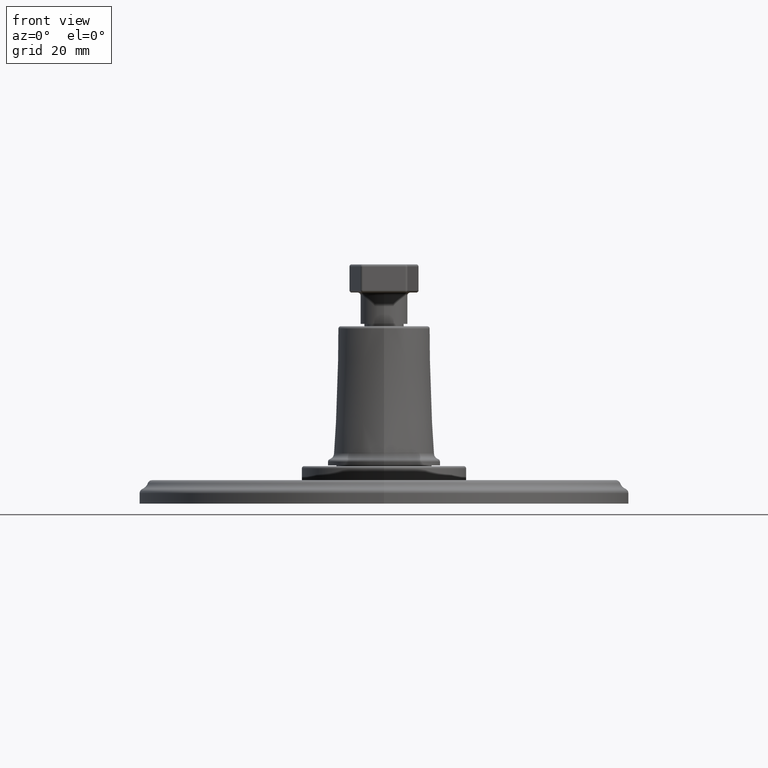
[diagram: clean part render]
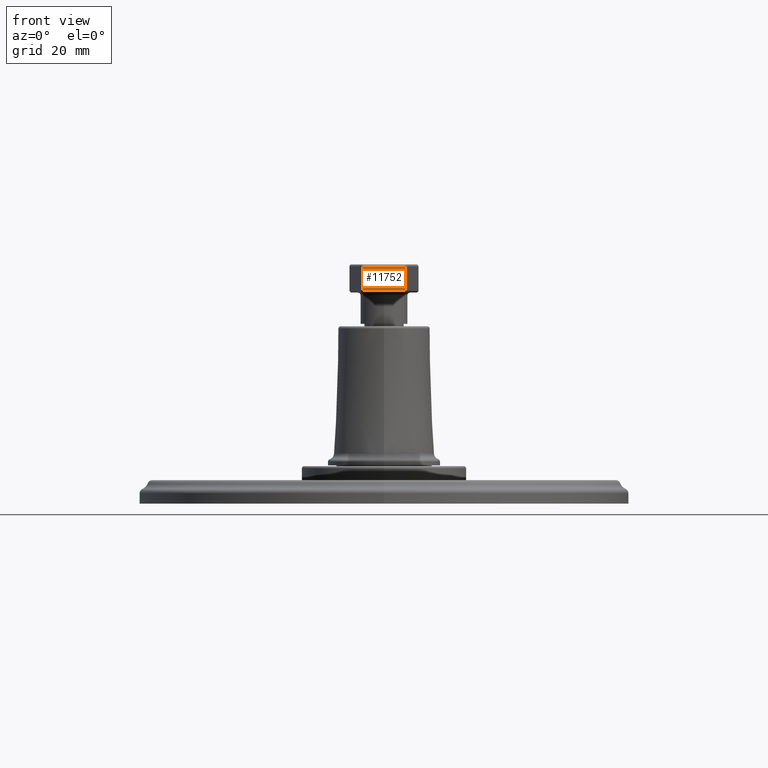
[diagram: same view with one face highlighted and labeled with its STEP entity id]
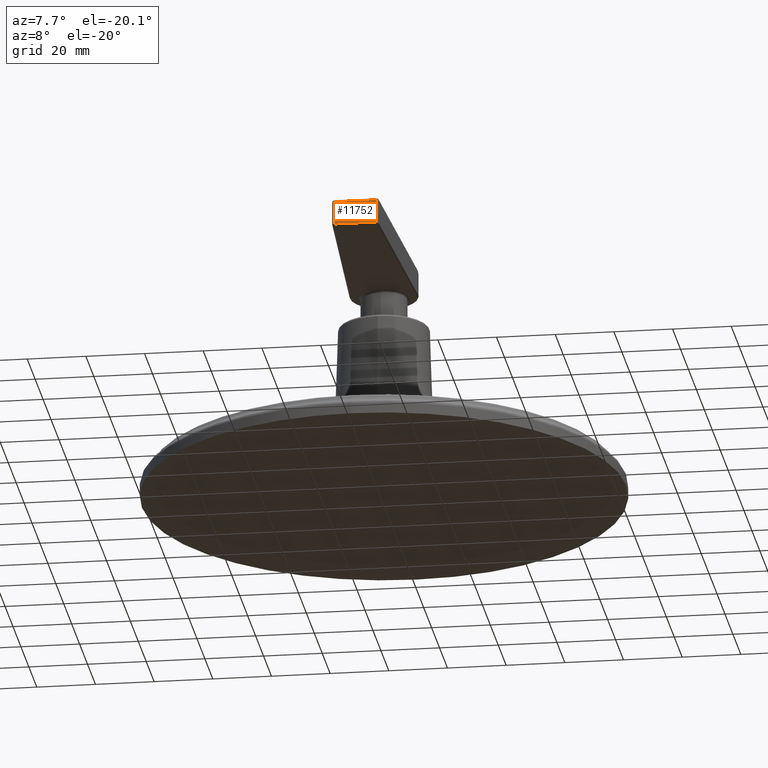
[diagram: same view with one face highlighted and labeled with its STEP entity id]
A machine part, front view. The second image highlights one B-rep face of the part: STEP entity #11752.
A second angle (auxiliary view) of the same face is appended — the face is thin or edge-on in the first view.
In plain terms, the highlighted planar face has unit normal (0, -1, 0).
Its self-contained STEP definition (entity closure, byte-faithful):
#4179=DIRECTION('',(1.E0,0.E0,0.E0));
#4180=VECTOR('',#4179,5.650675406843E-1);
#4181=CARTESIAN_POINT('',(-2.825337702490E-1,-2.85E0,3.153E0));
#4182=LINE('',#4181,#4180);
#4183=DIRECTION('',(-3.445295195521E-10,0.E0,-1.E0));
#4184=VECTOR('',#4183,3.15E-1);
#4185=CARTESIAN_POINT('',(2.825337704354E-1,-2.85E0,3.153E0));
#4186=LINE('',#4185,#4184);
#4187=DIRECTION('',(-1.E0,0.E0,0.E0));
#4188=VECTOR('',#4187,5.650675406065E-1);
#4189=CARTESIAN_POINT('',(2.825337703268E-1,-2.85E0,2.838E0));
#4190=LINE('',#4189,#4188);
#4191=DIRECTION('',(-9.733413369827E-11,0.E0,-1.E0));
#4192=VECTOR('',#4191,3.15E-1);
#4193=CARTESIAN_POINT('',(-2.825337702490E-1,-2.85E0,3.153E0));
#4194=LINE('',#4193,#4192);
#5512=CARTESIAN_POINT('',(-2.825337702183E-1,-2.85E0,3.153E0));
#5513=VERTEX_POINT('',#5512);
#5516=CARTESIAN_POINT('',(2.825337704354E-1,-2.85E0,3.153E0));
#5517=VERTEX_POINT('',#5516);
#5526=CARTESIAN_POINT('',(2.825337703268E-1,-2.85E0,2.838E0));
#5527=VERTEX_POINT('',#5526);
#5532=CARTESIAN_POINT('',(-2.825337702796E-1,-2.85E0,2.838E0));
#5533=VERTEX_POINT('',#5532);
#11741=CARTESIAN_POINT('',(-3.11E-1,-2.85E0,3.183E0));
#11742=DIRECTION('',(0.E0,-1.E0,0.E0));
#11743=DIRECTION('',(1.E0,0.E0,0.E0));
#11744=AXIS2_PLACEMENT_3D('',#11741,#11742,#11743);
#11745=PLANE('',#11744);
#11746=ORIENTED_EDGE('',*,*,#11735,.T.);
#11747=ORIENTED_EDGE('',*,*,#11711,.T.);
#11748=ORIENTED_EDGE('',*,*,#11503,.T.);
#11749=ORIENTED_EDGE('',*,*,#11530,.F.);
#11750=EDGE_LOOP('',(#11746,#11747,#11748,#11749));
#11751=FACE_OUTER_BOUND('',#11750,.F.);
#11752=ADVANCED_FACE('',(#11751),#11745,.T.);
#11503=EDGE_CURVE('',#5527,#5533,#4190,.T.);
#11530=EDGE_CURVE('',#5513,#5533,#4194,.T.);
#11711=EDGE_CURVE('',#5517,#5527,#4186,.T.);
#11735=EDGE_CURVE('',#5513,#5517,#4182,.T.);